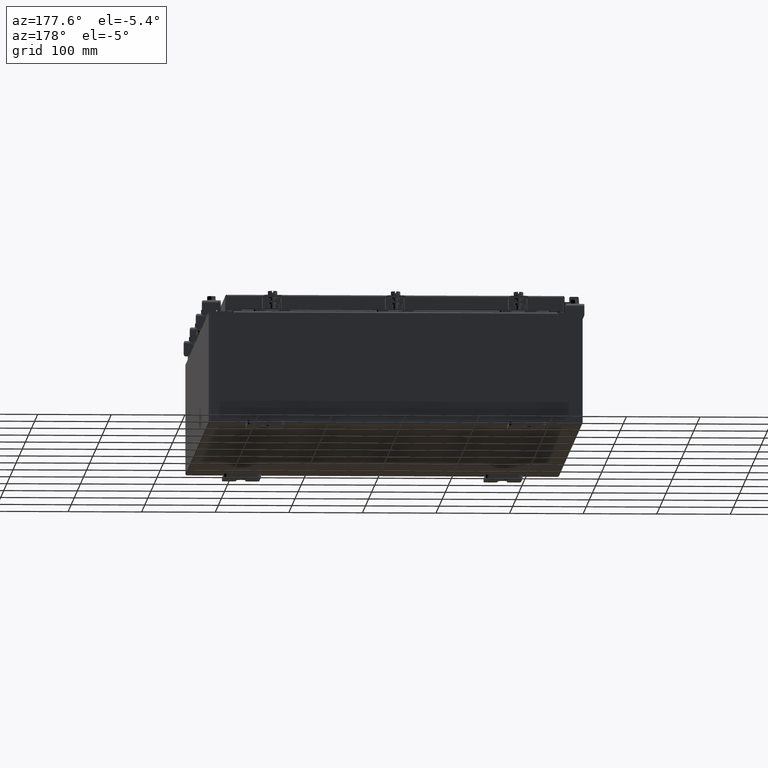
[diagram: clean part render]
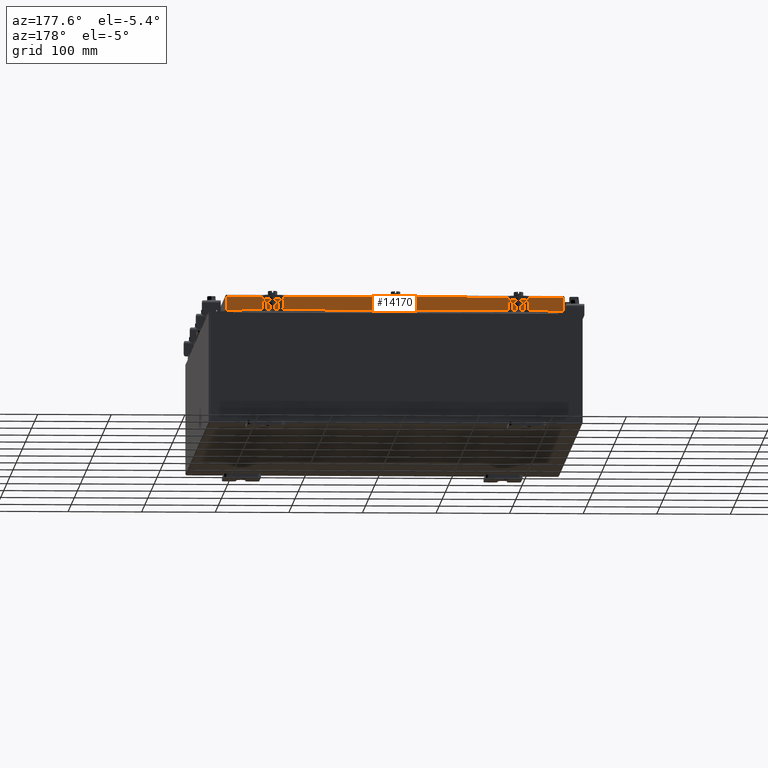
[diagram: same view with one face highlighted and labeled with its STEP entity id]
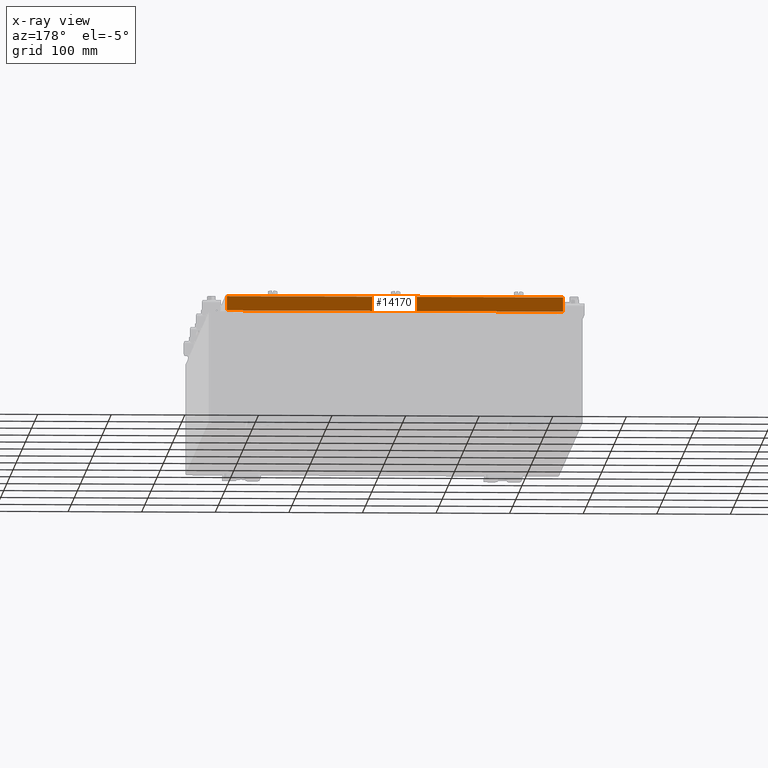
[diagram: x-ray of the same camera — body ghosted, the highlighted face saturated]
A machine part, auxiliary view. The second image highlights one B-rep face of the part: STEP entity #14170.
The next image is the same camera in x-ray: the body ghosted, the highlighted face saturated — about 0% of this face is hidden behind the body in this view.
In plain terms, the highlighted planar face has unit normal (0, -1, -0).
Its self-contained STEP definition (entity closure, byte-faithful):
#899 = ORIENTED_EDGE ( 'NONE', *, *, #5867, .F. ) ;
#2406 = CARTESIAN_POINT ( 'NONE',  ( -9.077999999999997600, 14.09400000000000100, -0.8500000000000019800 ) ) ;
#2859 = DIRECTION ( 'NONE',  ( -1.000000000000000000, -3.605222026166234800E-031, -9.826997386333231700E-046 ) ) ;
#3335 = CARTESIAN_POINT ( 'NONE',  ( 8.989157864376270600, 14.09399999999999900, 3.999012166344510300E-014 ) ) ;
#3807 = LINE ( 'NONE', #8174, #22241 ) ;
#4351 = VECTOR ( 'NONE', #19541, 39.37007874015748100 ) ;
#5867 = EDGE_CURVE ( 'NONE', #8600, #19373, #13092, .T. ) ;
#5918 = LINE ( 'NONE', #11820, #10759 ) ;
#6097 = EDGE_CURVE ( 'NONE', #15312, #10912, #3807, .T. ) ;
#7055 = DIRECTION ( 'NONE',  ( 0.0000000000000000000, 2.818880942772351900E-015, -1.000000000000000000 ) ) ;
#7658 = VECTOR ( 'NONE', #20345, 39.37007874015748100 ) ;
#8174 = CARTESIAN_POINT ( 'NONE',  ( -8.989157864376267100, 14.09399999999999900, -0.07469999999999978000 ) ) ;
#8226 = PLANE ( 'NONE',  #15030 ) ;
#8600 = VERTEX_POINT ( 'NONE', #17137 ) ;
#9981 = DIRECTION ( 'NONE',  ( -0.0000000000000000000, 2.818880942772351900E-015, -1.000000000000000000 ) ) ;
#10034 = DIRECTION ( 'NONE',  ( 0.0000000000000000000, 2.818880942772351900E-015, -1.000000000000000000 ) ) ;
#10759 = VECTOR ( 'NONE', #2859, 39.37007874015748100 ) ;
#10912 = VERTEX_POINT ( 'NONE', #13587 ) ;
#11097 = DIRECTION ( 'NONE',  ( 1.000000000000000000, -0.0000000000000000000, -0.0000000000000000000 ) ) ;
#11714 = ORIENTED_EDGE ( 'NONE', *, *, #6097, .F. ) ;
#11820 = CARTESIAN_POINT ( 'NONE',  ( -9.077999999999997600, 14.09399999999999900, -0.08770000000000007000 ) ) ;
#12481 = ORIENTED_EDGE ( 'NONE', *, *, #14411, .F. ) ;
#12640 = ORIENTED_EDGE ( 'NONE', *, *, #19489, .F. ) ;
#12804 = VERTEX_POINT ( 'NONE', #18906 ) ;
#13092 = LINE ( 'NONE', #14653, #21983 ) ;
#13524 = LINE ( 'NONE', #2406, #7658 ) ;
#13587 = CARTESIAN_POINT ( 'NONE',  ( -8.989157864376267100, 14.09400000000000100, -0.8500000000000019800 ) ) ;
#13912 = LINE ( 'NONE', #17791, #4351 ) ;
#14170 = ADVANCED_FACE ( 'NONE', ( #21985 ), #8226, .F. ) ;
#14363 = EDGE_LOOP ( 'NONE', ( #12640, #14542, #12481, #899, #15478, #11714 ) ) ;
#14411 = EDGE_CURVE ( 'NONE', #19373, #12804, #13912, .T. ) ;
#14542 = ORIENTED_EDGE ( 'NONE', *, *, #16152, .T. ) ;
#14653 = CARTESIAN_POINT ( 'NONE',  ( -8.239157864376263500, 14.09400000000000100, -0.8500000000000029800 ) ) ;
#15030 = AXIS2_PLACEMENT_3D ( 'NONE', #22398, #20709, #10034 ) ;
#15312 = VERTEX_POINT ( 'NONE', #17260 ) ;
#15478 = ORIENTED_EDGE ( 'NONE', *, *, #18815, .F. ) ;
#16152 = EDGE_CURVE ( 'NONE', #18437, #12804, #18114, .T. ) ;
#16300 = CARTESIAN_POINT ( 'NONE',  ( 8.239157864376263500, 14.09400000000000100, -0.8500000000000029800 ) ) ;
#17137 = CARTESIAN_POINT ( 'NONE',  ( -8.239157864376267100, 14.09400000000000100, -0.8500000000000029800 ) ) ;
#17260 = CARTESIAN_POINT ( 'NONE',  ( -8.989157864376267100, 14.09399999999999900, -0.08770000000000007000 ) ) ;
#17791 = CARTESIAN_POINT ( 'NONE',  ( -9.077999999999997600, 14.09400000000000100, -0.8500000000000019800 ) ) ;
#18114 = LINE ( 'NONE', #3335, #22223 ) ;
#18437 = VERTEX_POINT ( 'NONE', #22896 ) ;
#18815 = EDGE_CURVE ( 'NONE', #10912, #8600, #13524, .T. ) ;
#18906 = CARTESIAN_POINT ( 'NONE',  ( 8.989157864376268800, 14.09400000000000100, -0.8499999999999996400 ) ) ;
#19373 = VERTEX_POINT ( 'NONE', #16300 ) ;
#19489 = EDGE_CURVE ( 'NONE', #18437, #15312, #5918, .T. ) ;
#19541 = DIRECTION ( 'NONE',  ( 1.000000000000000000, -4.379057701015054300E-047, 1.278955053213606700E-016 ) ) ;
#20345 = DIRECTION ( 'NONE',  ( 1.000000000000000000, -4.379057701015054300E-047, 1.278955053213606700E-016 ) ) ;
#20709 = DIRECTION ( 'NONE',  ( 3.605222026166233900E-031, -1.000000000000000000, -2.818880942772351900E-015 ) ) ;
#21983 = VECTOR ( 'NONE', #11097, 39.37007874015748100 ) ;
#21985 = FACE_OUTER_BOUND ( 'NONE', #14363, .T. ) ;
#22223 = VECTOR ( 'NONE', #7055, 39.37007874015748100 ) ;
#22241 = VECTOR ( 'NONE', #9981, 39.37007874015748100 ) ;
#22398 = CARTESIAN_POINT ( 'NONE',  ( -5.081199923678690200E-030, 14.09399999999999900, 3.999012166344510300E-014 ) ) ;
#22896 = CARTESIAN_POINT ( 'NONE',  ( 8.989157864376268800, 14.09399999999999900, -0.08770000000000007000 ) ) ;